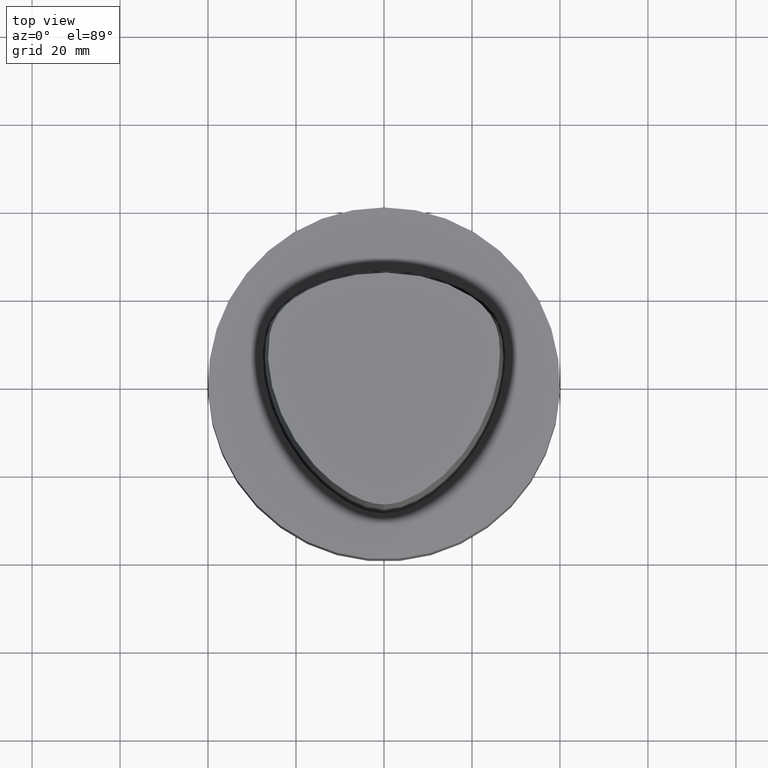
[diagram: clean part render]
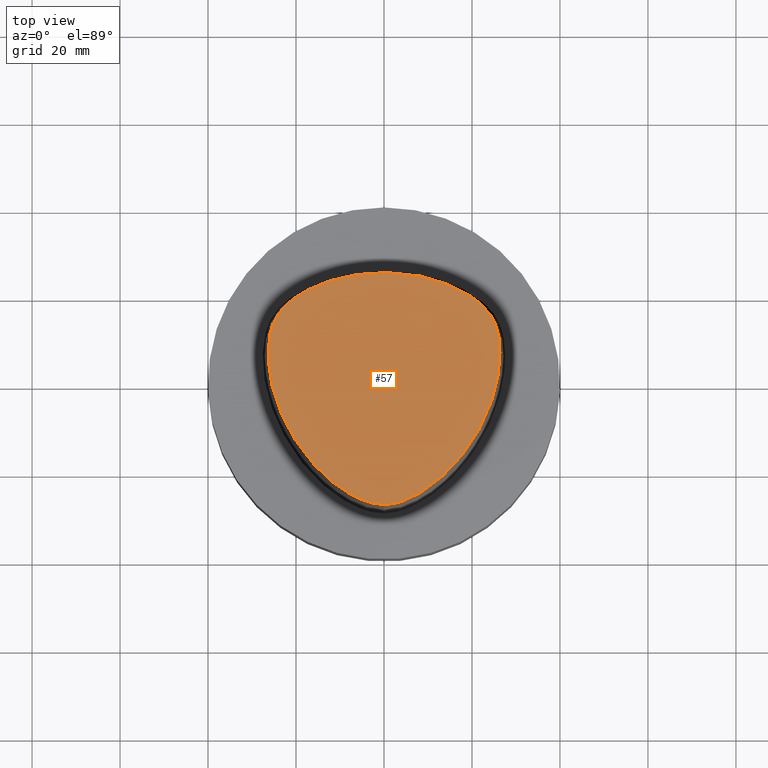
[diagram: same view with one face highlighted and labeled with its STEP entity id]
A machine part, top view. The second image highlights one B-rep face of the part: STEP entity #57.
In plain terms, the highlighted planar face has unit normal (-0, 0, 1).
Its self-contained STEP definition (entity closure, byte-faithful):
#44=EDGE_CURVE('Unnamed[1]',#104,#104,#105,.T.);
#57=ADVANCED_FACE('Unnamed[1]',(#122),#123,.T.);
#104=VERTEX_POINT('',#175);
#105=B_SPLINE_CURVE_WITH_KNOTS('',3,(#176,#177,#178,#179,#180,#181,#182,#183,#184,#185,#186,#187,#188,#189,#190,#191,#192,#193,#194,#195,#196,#197,#198,#199,#200,#201,#202,#203,#204,#205,#206,#207,#208,#209,#210,#211,#212,#213,#214,#215,#216,#217,#218,#219,#220,#221,#222,#223,#224),.UNSPECIFIED.,.T.,.F.,(4,1,1,1,1,1,1,1,1,1,1,1,1,1,1,1,1,1,1,1,1,1,1,1,1,1,1,1,1,1,1,1,1,1,1,1,1,1,1,1,1,1,1,1,1,1,4),(0.0,0.023351915855444,0.046587266388789,0.069240176568065,0.091148511555983,0.1123498082883,0.132988344921176,0.153259056323784,0.173379606256739,0.193575406900779,0.21406817556902,0.235062876490599,0.256724107877353,0.279134072148509,0.302211911987387,0.325585720772129,0.348897942793447,0.372235827811492,0.395117449062017,0.417273776916591,0.438690480917031,0.459517607941485,0.479887726529216,0.499920279645309,0.520109124362118,0.540479544703226,0.561306546843113,0.582722343807168,0.604879209617679,0.627760890760907,0.651098683894914,0.674411064884055,0.697926557694984,0.721709534344695,0.743275604228345,0.764936939065916,0.785931598379216,0.806424124397203,0.826619873462382,0.846740294796301,0.867010839616641,0.887649545430403,0.908851158162203,0.930759261827623,0.953412277508376,0.976648149620789,1.0),.UNSPECIFIED.);
#122=FACE_OUTER_BOUND('',#345,.T.);
#123=PLANE('',#346);
#175=CARTESIAN_POINT('',(-7.10564420632981E-015,-28.3748931426529,48.0));
#176=CARTESIAN_POINT('',(-7.10564420632981E-015,-28.3748931426529,48.0));
#177=CARTESIAN_POINT('',(-1.28829169155133,-28.3993673758179,48.0));
#178=CARTESIAN_POINT('',(-3.85959979030208,-27.8581705845853,48.0));
#179=CARTESIAN_POINT('',(-7.35807000570215,-26.3039671919376,48.0));
#180=CARTESIAN_POINT('',(-10.5217929466077,-24.2824556046413,48.0));
#181=CARTESIAN_POINT('',(-13.3353105701073,-21.9813369841311,48.0));
#182=CARTESIAN_POINT('',(-15.8288917398101,-19.4930169713482,48.0));
#183=CARTESIAN_POINT('',(-18.0343115007326,-16.8644361083806,48.0));
#184=CARTESIAN_POINT('',(-19.9811550180694,-14.112279200302,48.0));
#185=CARTESIAN_POINT('',(-21.692701668163,-11.2365503175383,48.0));
#186=CARTESIAN_POINT('',(-23.1773804507421,-8.22359439294641,48.0));
#187=CARTESIAN_POINT('',(-24.4321787442301,-5.05562842604973,48.0));
#188=CARTESIAN_POINT('',(-25.4341273198745,-1.71333919058597,48.0));
#189=CARTESIAN_POINT('',(-26.1351255888409,1.81352567250145,48.0));
#190=CARTESIAN_POINT('',(-26.4570368424595,5.51539373422401,48.0));
#191=CARTESIAN_POINT('',(-26.2640433000089,9.31895598900793,48.0));
#192=CARTESIAN_POINT('',(-25.3673970515537,13.117459349598,48.0));
#193=CARTESIAN_POINT('',(-23.1650593293068,16.3935410203794,48.0));
#194=CARTESIAN_POINT('',(-20.166041033419,18.8340538748086,48.0));
#195=CARTESIAN_POINT('',(-16.8920892201408,20.7294372455208,48.0));
#196=CARTESIAN_POINT('',(-13.5034428612199,22.1513818197868,48.0));
#197=CARTESIAN_POINT('',(-10.1051230998292,23.2053592739476,48.0));
#198=CARTESIAN_POINT('',(-6.71054806820375,23.893087183621,48.0));
#199=CARTESIAN_POINT('',(-3.3440966300513,24.1872106166354,48.0));
#200=CARTESIAN_POINT('',(-0.00436859656821,24.4542290901542,48.0));
#201=CARTESIAN_POINT('',(3.33552046318777,24.1878714828122,48.0));
#202=CARTESIAN_POINT('',(6.7106009616545,23.893485017694,48.0));
#203=CARTESIAN_POINT('',(10.1051559974891,23.2054948559444,48.0));
#204=CARTESIAN_POINT('',(13.5030031791571,22.150447002949,48.0));
#205=CARTESIAN_POINT('',(16.8923744626256,20.7297323497337,48.0));
#206=CARTESIAN_POINT('',(20.1652365808761,18.8339154382717,48.0));
#207=CARTESIAN_POINT('',(23.1681374732146,16.3939826803799,48.0));
#208=CARTESIAN_POINT('',(25.3601741943936,13.1089864874231,48.0));
#209=CARTESIAN_POINT('',(26.321105227627,9.27241325382508,48.0));
#210=CARTESIAN_POINT('',(26.4002391162146,5.46231423864461,48.0));
#211=CARTESIAN_POINT('',(26.1401991546312,1.76738885478758,48.0));
#212=CARTESIAN_POINT('',(25.4303705179883,-1.71324147084198,48.0));
#213=CARTESIAN_POINT('',(24.4327446070836,-5.05553218816385,48.0));
#214=CARTESIAN_POINT('',(23.1773594553093,-8.22370834660234,48.0));
#215=CARTESIAN_POINT('',(21.6921674973232,-11.2362273073486,48.0));
#216=CARTESIAN_POINT('',(19.9813729987982,-14.1124293711817,48.0));
#217=CARTESIAN_POINT('',(18.033984509433,-16.8641649241506,48.0));
#218=CARTESIAN_POINT('',(15.8290011220936,-19.4932243550181,48.0));
#219=CARTESIAN_POINT('',(13.3355411347684,-21.9812451369777,48.0));
#220=CARTESIAN_POINT('',(10.5217064911847,-24.2838945753292,48.0));
#221=CARTESIAN_POINT('',(7.35804941740046,-26.2980532430341,48.0));
#222=CARTESIAN_POINT('',(3.85974088767426,-27.8813814221605,48.0));
#223=CARTESIAN_POINT('',(1.28828807932148,-28.350418978111,48.0));
#224=CARTESIAN_POINT('',(-6.51692220632981E-015,-28.3748931426529,48.0));
#345=EDGE_LOOP('',(#792));
#346=AXIS2_PLACEMENT_3D('',#793,#794,#795);
#792=ORIENTED_EDGE('',*,*,#44,.F.);
#793=CARTESIAN_POINT('',(0.00157137799364468,-2.6153184570779,48.0));
#794=DIRECTION('',(-0.0,2.95577857036584E-049,1.0));
#795=DIRECTION('',(1.0,0.0,0.0));